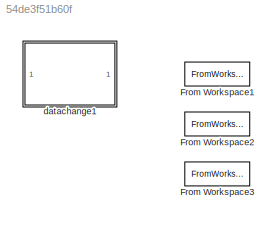
MODEL slx_54de3f51b60f
KIND library
BLOCK [FromWorkspace] From Workspace1
  SampleTime = 0
  VariableName = [system_time.signals.values,euler_roll_angle_cd.signals.values]
  ZeroCross = on
BLOCK [FromWorkspace] From Workspace2
  SampleTime = 0
  VariableName = [system_time.signals.values,euler_pitch_angle_cd.signals.values]
  ZeroCross = on
BLOCK [FromWorkspace] From Workspace3
  SampleTime = 0
  VariableName = [system_time.signals.values,euler_yaw_rate_cd.signals.values]
  ZeroCross = on
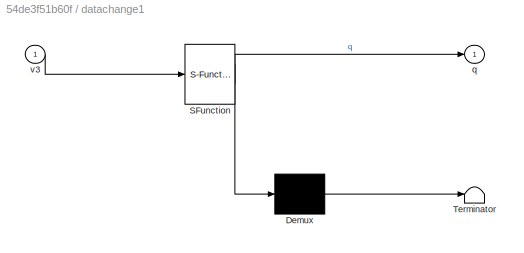
BLOCK [SubSystem] datachange1
  ErrorFcn = Stateflow.Translate.translate
  PermitHierarchicalResolution = ExplicitOnly
  Ports = [1, 1]
  RequestExecContextInheritance = off
  SFBlockType = MATLAB Function
  TreatAsAtomicUnit = on
BLOCK [Demux] datachange1/ Demux 
  Outputs = 1
  Ports = [1, 1]
BLOCK [S-Function] datachange1/ SFunction 
  EnableBusSupport = off
  FunctionName = sf_sfun
  PortCounts = [1 2]
  Ports = [1, 2]
  Tag = Stateflow S-Function Lib_TestWatch 10
BLOCK [Terminator] datachange1/ Terminator 
BLOCK [Outport] datachange1/q
  IconDisplay = Port number
BLOCK [Inport] datachange1/v3
  IconDisplay = Port number
CHART datachange1 states=1 transitions=1
  STATE_LABEL 'eML_blk_kernel()'
  STATE_LABEL 'SCRIPT:\nfunction q=datachange(v3)\nq1=v3(1);\nq2=v3(2);\nq3=v3(3);\nq=[q1;q2;q3];\n'
